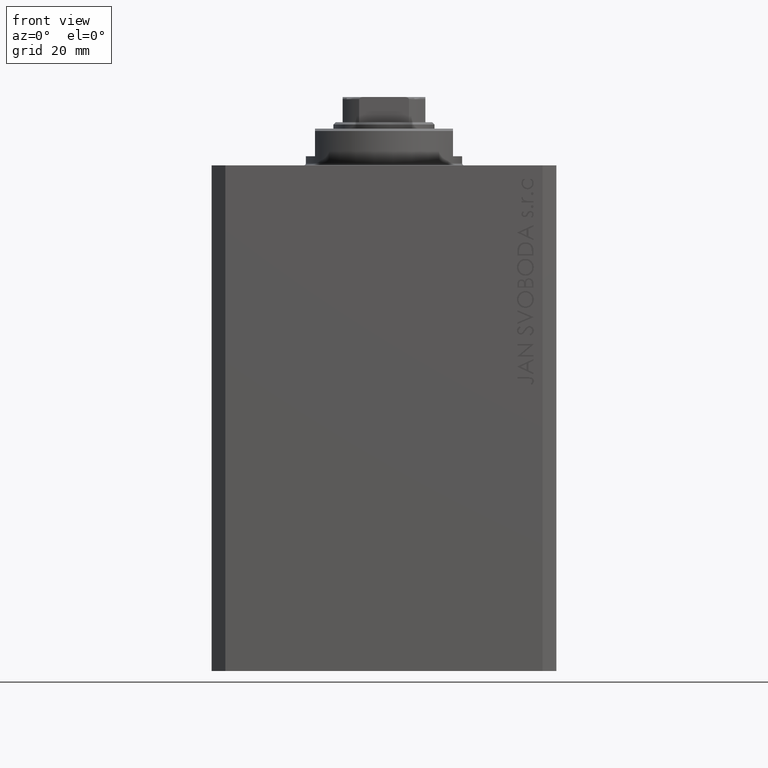
[diagram: clean part render]
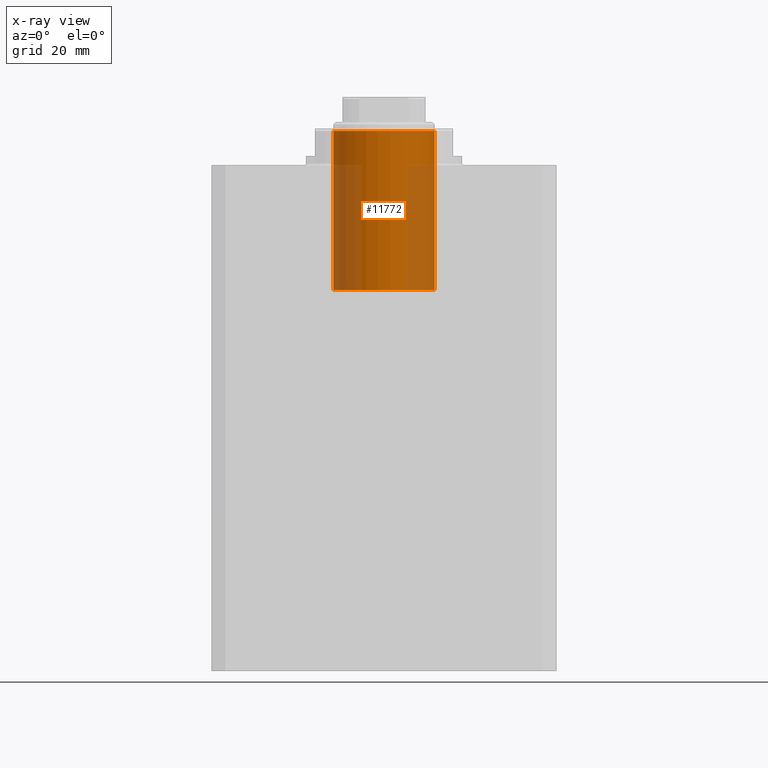
[diagram: x-ray — body ghosted, one internal face saturated and labeled with its STEP entity id]
A machine part, front view, then the same camera in x-ray: the body is ghosted and one INTERNAL B-rep face — a face not visible from any outside direction — is saturated and labeled: STEP entity #11772.
In plain terms, the highlighted cylindrical surface (partial cylindrical patch) has radius 11 mm, axis along (0, -0, 1).
Its self-contained STEP definition (entity closure, byte-faithful):
#28 = ORIENTED_EDGE ( 'NONE', *, *, #21447, .F. ) ;
#234 = LINE ( 'NONE', #7662, #31196 ) ;
#1380 = CARTESIAN_POINT ( 'NONE',  ( 0.000000000000000000, 0.000000000000000000, -7.500000000000013323 ) ) ;
#2524 = VERTEX_POINT ( 'NONE', #19104 ) ;
#2665 = EDGE_LOOP ( 'NONE', ( #28, #26836, #6685, #13565 ) ) ;
#6518 = EDGE_CURVE ( 'NONE', #2524, #19656, #7500, .T. ) ;
#6685 = ORIENTED_EDGE ( 'NONE', *, *, #6518, .T. ) ;
#7500 = CIRCLE ( 'NONE', #22749, 11.00000000000000000 ) ;
#7662 = CARTESIAN_POINT ( 'NONE',  ( 11.00000000000000000, 1.347111479062088405E-15, 27.10000000000000497 ) ) ;
#9607 = DIRECTION ( 'NONE',  ( -1.000000000000000000, 0.000000000000000000, 0.000000000000000000 ) ) ;
#10587 = CYLINDRICAL_SURFACE ( 'NONE', #45848, 11.00000000000000000 ) ;
#11591 = DIRECTION ( 'NONE',  ( -0.000000000000000000, -0.000000000000000000, -1.000000000000000000 ) ) ;
#11772 = ADVANCED_FACE ( 'NONE', ( #27814 ), #10587, .F. ) ;
#13565 = ORIENTED_EDGE ( 'NONE', *, *, #47200, .F. ) ;
#13928 = DIRECTION ( 'NONE',  ( -1.000000000000000000, 0.000000000000000000, 0.000000000000000000 ) ) ;
#15968 = DIRECTION ( 'NONE',  ( -1.000000000000000000, 0.000000000000000000, 0.000000000000000000 ) ) ;
#19104 = CARTESIAN_POINT ( 'NONE',  ( 11.00000000000000000, 1.347111479062088405E-15, -7.500000000000013323 ) ) ;
#19656 = VERTEX_POINT ( 'NONE', #27349 ) ;
#21447 = EDGE_CURVE ( 'NONE', #27862, #25407, #39727, .T. ) ;
#22749 = AXIS2_PLACEMENT_3D ( 'NONE', #1380, #29868, #15968 ) ;
#25197 = DIRECTION ( 'NONE',  ( -0.000000000000000000, -0.000000000000000000, -1.000000000000000000 ) ) ;
#25373 = DIRECTION ( 'NONE',  ( -0.000000000000000000, -0.000000000000000000, -1.000000000000000000 ) ) ;
#25407 = VERTEX_POINT ( 'NONE', #27696 ) ;
#26836 = ORIENTED_EDGE ( 'NONE', *, *, #41055, .T. ) ;
#27349 = CARTESIAN_POINT ( 'NONE',  ( -11.00000000000000000, 0.000000000000000000, -7.500000000000013323 ) ) ;
#27696 = CARTESIAN_POINT ( 'NONE',  ( -11.00000000000000000, 0.000000000000000000, 27.10000000000000497 ) ) ;
#27814 = FACE_OUTER_BOUND ( 'NONE', #2665, .T. ) ;
#27862 = VERTEX_POINT ( 'NONE', #39802 ) ;
#29786 = LINE ( 'NONE', #44384, #38919 ) ;
#29868 = DIRECTION ( 'NONE',  ( 0.000000000000000000, 0.000000000000000000, -1.000000000000000000 ) ) ;
#31196 = VECTOR ( 'NONE', #25373, 1000.000000000000000 ) ;
#34996 = CARTESIAN_POINT ( 'NONE',  ( 0.000000000000000000, 0.000000000000000000, 27.10000000000000497 ) ) ;
#38919 = VECTOR ( 'NONE', #11591, 1000.000000000000000 ) ;
#39310 = CARTESIAN_POINT ( 'NONE',  ( 0.000000000000000000, 0.000000000000000000, 27.10000000000000497 ) ) ;
#39727 = CIRCLE ( 'NONE', #45836, 11.00000000000000000 ) ;
#39802 = CARTESIAN_POINT ( 'NONE',  ( 11.00000000000000000, 1.347111479062088405E-15, 27.10000000000000497 ) ) ;
#41055 = EDGE_CURVE ( 'NONE', #27862, #2524, #234, .T. ) ;
#44384 = CARTESIAN_POINT ( 'NONE',  ( -11.00000000000000000, 0.000000000000000000, 27.10000000000000497 ) ) ;
#45836 = AXIS2_PLACEMENT_3D ( 'NONE', #34996, #46003, #9607 ) ;
#45848 = AXIS2_PLACEMENT_3D ( 'NONE', #39310, #25197, #13928 ) ;
#46003 = DIRECTION ( 'NONE',  ( 0.000000000000000000, 0.000000000000000000, -1.000000000000000000 ) ) ;
#47200 = EDGE_CURVE ( 'NONE', #25407, #19656, #29786, .T. ) ;